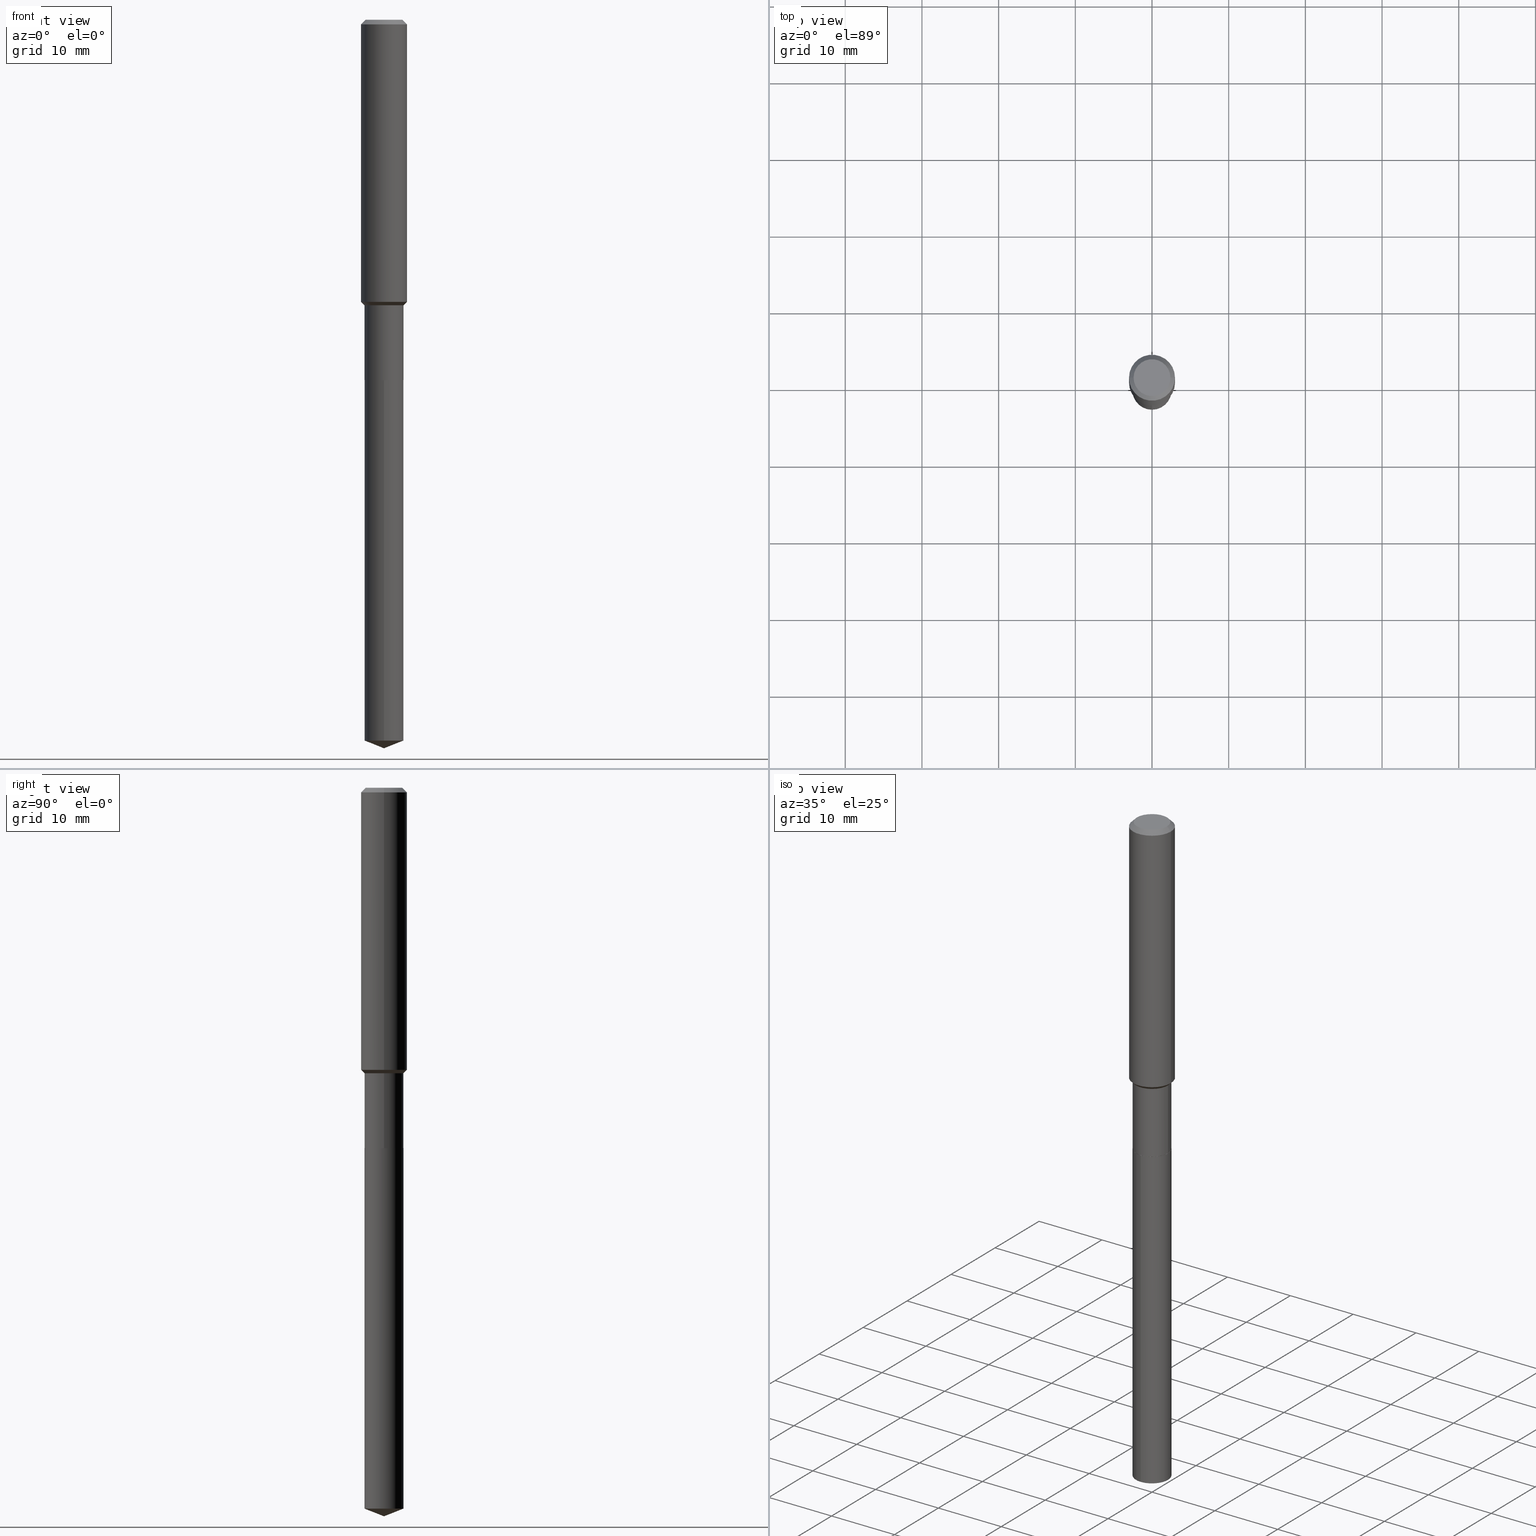
[diagram: canonical four-view strip — front | top / right | iso, engineering-drawing reading convention]
A machine part, canonical four-view strip (front | top / right | iso — engineering-drawing reading convention). The complete STEP part file that produces these views, byte-faithful:
ISO-10303-21;
HEADER;
FILE_DESCRIPTION (( 'STEP AP203' ),
    '1' );
FILE_NAME ('66627.STEP',
    '2024-04-25T02:21:04',
    ( '' ),
    ( '' ),
    'SwSTEP 2.0',
    'SolidWorks 2023',
    '' );
FILE_SCHEMA (( 'CONFIG_CONTROL_DESIGN' ));
ENDSEC;

DATA;
#1 = EDGE_CURVE ( 'NONE', #438, #490, #258, .T. ) ;
#2 = AXIS2_PLACEMENT_3D ( 'NONE', #126, #92, #237 ) ;
#3 = VECTOR ( 'NONE', #405, 39.37007874015748143 ) ;
#4 = VERTEX_POINT ( 'NONE', #230 ) ;
#5 = LOCAL_TIME ( 22, 21, 4.000000000000000000, #248 ) ;
#6 = VERTEX_POINT ( 'NONE', #54 ) ;
#7 = DIRECTION ( 'NONE',  ( -2.445468806185136597E-29, 3.491481338843145583E-15, 1.000000000000000000 ) ) ;
#8 = ORIENTED_EDGE ( 'NONE', *, *, #367, .T. ) ;
#9 = ADVANCED_FACE ( 'NONE', ( #119 ), #204, .T. ) ;
#10 = LINE ( 'NONE', #155, #250 ) ;
#11 = AXIS2_PLACEMENT_3D ( 'NONE', #478, #70, #135 ) ;
#12 = APPROVAL_PERSON_ORGANIZATION ( #401, #110, #138 ) ;
#13 = CARTESIAN_POINT ( 'NONE',  ( 0.1180999999999999966, -9.071566814582237199E-16, -0.02362000000000014088 ) ) ;
#14 = CC_DESIGN_PERSON_AND_ORGANIZATION_ASSIGNMENT ( #84, #459, ( #220 ) ) ;
#15 = DIRECTION ( 'NONE',  ( -2.445480539169629745E-29, 3.491464536541551464E-15, 1.000000000000000000 ) ) ;
#16 = DIRECTION ( 'NONE',  ( -2.445468806185136597E-29, 3.491481338843145583E-15, 1.000000000000000000 ) ) ;
#17 = CALENDAR_DATE ( 2024, 24, 4 ) ;
#18 = CYLINDRICAL_SURFACE ( 'NONE', #446, 0.1003999999999999754 ) ;
#19 = EDGE_CURVE ( 'NONE', #51, #262, #176, .T. ) ;
#20 = FACE_OUTER_BOUND ( 'NONE', #415, .T. ) ;
#21 = AXIS2_PLACEMENT_3D ( 'NONE', #353, #53, #91 ) ;
#22 = CONICAL_SURFACE ( 'NONE', #355, 0.09990000000000000269, 0.7853981633972606513 ) ;
#23 = DIRECTION ( 'NONE',  ( 1.000000000000000000, -6.982962677686270655E-15, 0.000000000000000000 ) ) ;
#24 = ORIENTED_EDGE ( 'NONE', *, *, #52, .F. ) ;
#25 = PERSON_AND_ORGANIZATION_ROLE ( 'design_supplier' ) ;
#26 = DIRECTION ( 'NONE',  ( -6.982962677686266711E-15, -1.000000000000000000, 2.720964137115799877E-15 ) ) ;
#27 = CARTESIAN_POINT ( 'NONE',  ( 5.776197320209327532E-31, -8.246878922347559293E-17, -0.02362000000000014088 ) ) ;
#28 = EDGE_CURVE ( 'NONE', #411, #6, #160, .T. ) ;
#29 = PRODUCT_DEFINITION_SHAPE ( 'NONE', 'NONE',  #238 ) ;
#30 = SHAPE_DEFINITION_REPRESENTATION ( #29, #224 ) ;
#31 = CARTESIAN_POINT ( 'NONE',  ( 3.541772471997932877E-29, -5.056712423046527608E-15, -1.448299999999999921 ) ) ;
#32 = DIRECTION ( 'NONE',  ( 6.611014441532047656E-15, 0.9304175679820245737, 0.3665012267242970800 ) ) ;
#33 = APPROVAL_DATE_TIME ( #134, #453 ) ;
#34 = VECTOR ( 'NONE', #123, 39.37007874015748143 ) ;
#35 = AXIS2_PLACEMENT_3D ( 'NONE', #418, #222, #380 ) ;
#36 = FACE_OUTER_BOUND ( 'NONE', #452, .T. ) ;
#37 = LINE ( 'NONE', #81, #169 ) ;
#38 = PERSON_AND_ORGANIZATION ( #256, #396 ) ;
#39 = PRODUCT_RELATED_PRODUCT_CATEGORY ( 'detail', '', ( #220 ) ) ;
#40 = CARTESIAN_POINT ( 'NONE',  ( 2.358133508849003952E-46, -3.366789680499277518E-32, -9.642868896486260050E-18 ) ) ;
#41 =( LENGTH_UNIT ( ) NAMED_UNIT ( * ) SI_UNIT ( $, .METRE. ) );
#42 = FACE_OUTER_BOUND ( 'NONE', #151, .T. ) ;
#43 = CIRCLE ( 'NONE', #364, 0.1180999999999999966 ) ;
#44 = CIRCLE ( 'NONE', #326, 0.1003999999999999893 ) ;
#45 = VERTEX_POINT ( 'NONE', #13 ) ;
#46 = ORIENTED_EDGE ( 'NONE', *, *, #384, .T. ) ;
#47 = EDGE_LOOP ( 'NONE', ( #113, #178, #343, #109 ) ) ;
#48 = APPLICATION_CONTEXT ( 'configuration controlled 3d designs of mechanical parts and assemblies' ) ;
#49 = CIRCLE ( 'NONE', #107, 0.1180999999999999966 ) ;
#50 = EDGE_LOOP ( 'NONE', ( #8, #373, #425, #149 ) ) ;
#51 = VERTEX_POINT ( 'NONE', #165 ) ;
#52 = EDGE_CURVE ( 'NONE', #51, #304, #461, .T. ) ;
#53 = DIRECTION ( 'NONE',  ( -2.445468806185136597E-29, 3.491481338843145583E-15, 1.000000000000000000 ) ) ;
#54 = CARTESIAN_POINT ( 'NONE',  ( -7.010894528396559145E-16, -0.1004000000000064563, -1.850400000000000045 ) ) ;
#55 = ORIENTED_EDGE ( 'NONE', *, *, #322, .F. ) ;
#56 = EDGE_CURVE ( 'NONE', #78, #215, #10, .T. ) ;
#57 = DIRECTION ( 'NONE',  ( 1.000000000000000000, -6.982962677686270655E-15, 0.000000000000000000 ) ) ;
#58 = PERSON_AND_ORGANIZATION_ROLE ( 'creator' ) ;
#59 = FACE_OUTER_BOUND ( 'NONE', #180, .T. ) ;
#60 = DIRECTION ( 'NONE',  ( 1.000000000000000000, -6.982962677686265133E-15, 0.000000000000000000 ) ) ;
#61 = CIRCLE ( 'NONE', #148, 0.1181000000000001632 ) ;
#62 = PERSON_AND_ORGANIZATION ( #256, #396 ) ;
#63 = DIRECTION ( 'NONE',  ( 1.000000000000000000, -6.982962677686263555E-15, 0.000000000000000000 ) ) ;
#64 = DIRECTION ( 'NONE',  ( -2.445480539169630025E-29, 3.491464536541551464E-15, 1.000000000000000000 ) ) ;
#65 = DIRECTION ( 'NONE',  ( -6.982962677686266711E-15, -1.000000000000000000, 5.441928274231599754E-15 ) ) ;
#66 = CALENDAR_DATE ( 2024, 24, 4 ) ;
#67 = DIRECTION ( 'NONE',  ( 1.000000000000000000, -6.982962677686265133E-15, 0.000000000000000000 ) ) ;
#68 = VERTEX_POINT ( 'NONE', #473 ) ;
#69 = AXIS2_PLACEMENT_3D ( 'NONE', #72, #164, #67 ) ;
#70 = DIRECTION ( 'NONE',  ( -2.445468806185136597E-29, 3.491481338843145583E-15, 1.000000000000000000 ) ) ;
#71 = EDGE_CURVE ( 'NONE', #4, #78, #218, .T. ) ;
#72 = CARTESIAN_POINT ( 'NONE',  ( 3.585057269867410650E-29, -5.118511642744051990E-15, -1.466000000000000192 ) ) ;
#73 = VERTEX_POINT ( 'NONE', #279 ) ;
#74 = AXIS2_PLACEMENT_3D ( 'NONE', #192, #345, #464 ) ;
#75 = ADVANCED_FACE ( 'NONE', ( #458 ), #351, .T. ) ;
#76 = APPROVAL_PERSON_ORGANIZATION ( #87, #453, #227 ) ;
#77 = ORIENTED_EDGE ( 'NONE', *, *, #1, .F. ) ;
#78 = VERTEX_POINT ( 'NONE', #465 ) ;
#79 = EDGE_CURVE ( 'NONE', #304, #447, #409, .T. ) ;
#80 = ORIENTED_EDGE ( 'NONE', *, *, #216, .F. ) ;
#81 = CARTESIAN_POINT ( 'NONE',  ( -0.09990000000000000269, -5.750804876371019148E-15, -1.850400000000000489 ) ) ;
#82 = ORIENTED_EDGE ( 'NONE', *, *, #28, .T. ) ;
#83 = CARTESIAN_POINT ( 'NONE',  ( 3.541772471997932877E-29, -5.056712423046527608E-15, -1.448299999999999921 ) ) ;
#84 = PERSON_AND_ORGANIZATION ( #256, #396 ) ;
#85 = CC_DESIGN_PERSON_AND_ORGANIZATION_ASSIGNMENT ( #38, #25, ( #108 ) ) ;
#86 = ORIENTED_EDGE ( 'NONE', *, *, #336, .F. ) ;
#87 = PERSON_AND_ORGANIZATION ( #256, #396 ) ;
#88 = ORIENTED_EDGE ( 'NONE', *, *, #144, .T. ) ;
#89 = AXIS2_PLACEMENT_3D ( 'NONE', #173, #298, #325 ) ;
#90 = SECURITY_CLASSIFICATION ( '', '', #167 ) ;
#91 = DIRECTION ( 'NONE',  ( 1.000000000000000000, -6.982962677686263555E-15, 0.000000000000000000 ) ) ;
#92 = DIRECTION ( 'NONE',  ( -2.438088387897960049E-29, 3.491481338843145188E-15, 1.000000000000000000 ) ) ;
#93 = ADVANCED_FACE ( 'NONE', ( #20 ), #240, .T. ) ;
#94 = DIRECTION ( 'NONE',  ( -2.445468806185136597E-29, 3.491481338843145583E-15, 1.000000000000000000 ) ) ;
#95 = LINE ( 'NONE', #332, #140 ) ;
#96 = AXIS2_PLACEMENT_3D ( 'NONE', #387, #328, #125 ) ;
#97 = APPROVAL_DATE_TIME ( #128, #110 ) ;
#98 = DIRECTION ( 'NONE',  ( -2.445468806185136597E-29, 3.491481338843145583E-15, 1.000000000000000000 ) ) ;
#99 = EDGE_LOOP ( 'NONE', ( #46, #479, #263, #179 ) ) ;
#100 = COORDINATED_UNIVERSAL_TIME_OFFSET ( 5, 0, .BEHIND. ) ;
#101 = CARTESIAN_POINT ( 'NONE',  ( 9.049849241497684976E-29, -1.292072417515092949E-14, -3.700651388248259455 ) ) ;
#102 = CARTESIAN_POINT ( 'NONE',  ( 4.525095478964977954E-29, -6.460637069395358365E-15, -1.850400000000000489 ) ) ;
#103 = CLOSED_SHELL ( 'NONE', ( #470, #170, #280, #9, #75, #243, #485, #264, #225, #340, #114, #359 ) ) ;
#104 = VECTOR ( 'NONE', #460, 39.37007874015748143 ) ;
#105 = ORIENTED_EDGE ( 'NONE', *, *, #127, .F. ) ;
#106 = CARTESIAN_POINT ( 'NONE',  ( 0.1181000000000000799, -8.246878922347486570E-16, 5.758764772215004644E-30 ) ) ;
#107 = AXIS2_PLACEMENT_3D ( 'NONE', #200, #98, #399 ) ;
#108 = PRODUCT_DEFINITION_FORMATION_WITH_SPECIFIED_SOURCE ( 'ANY', '', #220, .NOT_KNOWN. ) ;
#109 = ORIENTED_EDGE ( 'NONE', *, *, #19, .F. ) ;
#110 = APPROVAL ( #471, 'UNSPECIFIED' ) ;
#111 = ORIENTED_EDGE ( 'NONE', *, *, #71, .T. ) ;
#112 = DIRECTION ( 'NONE',  ( -2.445468806185136877E-29, 3.491481338843145188E-15, 1.000000000000000000 ) ) ;
#113 = ORIENTED_EDGE ( 'NONE', *, *, #260, .F. ) ;
#114 = ADVANCED_FACE ( 'NONE', ( #283 ), #430, .F. ) ;
#115 = CARTESIAN_POINT ( 'NONE',  ( 0.000000000000000000, 0.000000000000000000, 0.000000000000000000 ) ) ;
#116 = EDGE_LOOP ( 'NONE', ( #55, #210, #381, #105 ) ) ;
#117 = ORIENTED_EDGE ( 'NONE', *, *, #271, .F. ) ;
#118 = DIRECTION ( 'NONE',  ( 1.000000000000000000, -6.982962677686266711E-15, 4.876176775795935232E-29 ) ) ;
#119 = FACE_OUTER_BOUND ( 'NONE', #50, .T. ) ;
#120 = CARTESIAN_POINT ( 'NONE',  ( 4.525095478964977394E-29, -6.460637069395357576E-15, -1.850400000000000267 ) ) ;
#121 = CARTESIAN_POINT ( 'NONE',  ( 3.585057269867410650E-29, -5.118511642744051990E-15, -1.466000000000000192 ) ) ;
#122 = VECTOR ( 'NONE', #436, 39.37007874015748143 ) ;
#123 = DIRECTION ( 'NONE',  ( -0.7071067811865479058, 7.493145998870355738E-15, 0.7071067811865471286 ) ) ;
#124 = CALENDAR_DATE ( 2024, 24, 4 ) ;
#125 = DIRECTION ( 'NONE',  ( -6.982962677686265133E-15, -1.000000000000000000, 3.498627837350077192E-15 ) ) ;
#126 = CARTESIAN_POINT ( 'NONE',  ( 9.916663666885805899E-30, -1.152070866847078647E-14, -1.850400000000000489 ) ) ;
#127 = EDGE_CURVE ( 'NONE', #215, #45, #43, .T. ) ;
#128 = DATE_AND_TIME ( #124, #467 ) ;
#129 = CARTESIAN_POINT ( 'NONE',  ( 0.1181000000000001632, -5.881400315281276659E-15, -1.448299999999999921 ) ) ;
#130 = CARTESIAN_POINT ( 'NONE',  ( 7.133849067031857711E-16, 0.1003999999999935500, -1.850400000000000489 ) ) ;
#131 = VECTOR ( 'NONE', #469, 39.37007874015748143 ) ;
#132 = CONICAL_SURFACE ( 'NONE', #96, 99.94676754583788636, 1.195550537616112408 ) ;
#133 = LOCAL_TIME ( 22, 21, 4.000000000000000000, #462 ) ;
#134 = DATE_AND_TIME ( #17, #133 ) ;
#135 = DIRECTION ( 'NONE',  ( 1.000000000000000000, -6.982962677686267499E-15, 0.000000000000000000 ) ) ;
#136 = ORIENTED_EDGE ( 'NONE', *, *, #150, .T. ) ;
#137 = FACE_OUTER_BOUND ( 'NONE', #308, .T. ) ;
#138 = APPROVAL_ROLE ( '' ) ;
#139 = CYLINDRICAL_SURFACE ( 'NONE', #206, 0.1004000000000000031 ) ;
#140 = VECTOR ( 'NONE', #32, 39.37007874015748854 ) ;
#141 = AXIS2_PLACEMENT_3D ( 'NONE', #489, #255, #305 ) ;
#142 = ORIENTED_EDGE ( 'NONE', *, *, #395, .F. ) ;
#143 = ORIENTED_EDGE ( 'NONE', *, *, #56, .F. ) ;
#144 = EDGE_CURVE ( 'NONE', #73, #438, #294, .T. ) ;
#145 = CARTESIAN_POINT ( 'NONE',  ( 3.585057269867410650E-29, -5.118511642744051990E-15, -1.466000000000000192 ) ) ;
#146 = EDGE_LOOP ( 'NONE', ( #383, #86 ) ) ;
#147 = VECTOR ( 'NONE', #437, 39.37007874015748143 ) ;
#148 = AXIS2_PLACEMENT_3D ( 'NONE', #31, #94, #23 ) ;
#149 = ORIENTED_EDGE ( 'NONE', *, *, #252, .F. ) ;
#150 = EDGE_CURVE ( 'NONE', #153, #327, #95, .T. ) ;
#151 = EDGE_LOOP ( 'NONE', ( #24, #391, #257, #205 ) ) ;
#152 = LINE ( 'NONE', #311, #300 ) ;
#153 = VERTEX_POINT ( 'NONE', #297 ) ;
#154 = AXIS2_PLACEMENT_3D ( 'NONE', #171, #295, #26 ) ;
#155 = CARTESIAN_POINT ( 'NONE',  ( -0.1180999999999999966, 7.422191030112725094E-16, -0.02362000000000014088 ) ) ;
#156 = DIRECTION ( 'NONE',  ( 0.7071067811865479058, -2.468850131082261005E-15, 0.7071067811865471286 ) ) ;
#157 = DIRECTION ( 'NONE',  ( -0.7071067811865459074, 2.468850131082240100E-15, -0.7071067811865491270 ) ) ;
#158 = EDGE_CURVE ( 'NONE', #327, #422, #246, .T. ) ;
#159 = DIRECTION ( 'NONE',  ( -0.7071067811864147901, 7.493145998869874533E-15, 0.7071067811866802444 ) ) ;
#160 = LINE ( 'NONE', #349, #131 ) ;
#161 = CARTESIAN_POINT ( 'NONE',  ( 0.1003999999999999615, -5.819601095583753067E-15, -1.466000000000000192 ) ) ;
#162 = CARTESIAN_POINT ( 'NONE',  ( -8.713219678274335127E-28, 1.244004269715567405E-13, 35.62987874015747991 ) ) ;
#163 = AXIS2_PLACEMENT_3D ( 'NONE', #162, #356, #318 ) ;
#164 = DIRECTION ( 'NONE',  ( -2.445468806185136597E-29, 3.491481338843145583E-15, 1.000000000000000000 ) ) ;
#165 = CARTESIAN_POINT ( 'NONE',  ( -0.1003999999999999615, -5.075316579031853521E-15, -1.466000000000000192 ) ) ;
#166 = DIRECTION ( 'NONE',  ( -1.000000000000000000, 6.982962677686265922E-15, -4.876176775795935793E-29 ) ) ;
#167 = SECURITY_CLASSIFICATION_LEVEL ( 'unclassified' ) ;
#168 = CARTESIAN_POINT ( 'NONE',  ( 9.049849241497684976E-29, -1.292072417515092949E-14, -3.700651388248259455 ) ) ;
#169 = VECTOR ( 'NONE', #159, 39.37007874015748143 ) ;
#170 = ADVANCED_FACE ( 'NONE', ( #400 ), #182, .T. ) ;
#171 = CARTESIAN_POINT ( 'NONE',  ( 4.525095478964977394E-29, -6.460637069395357576E-15, -1.850400000000000267 ) ) ;
#172 = CALENDAR_DATE ( 2024, 24, 4 ) ;
#173 = CARTESIAN_POINT ( 'NONE',  ( 4.525095478964977954E-29, -6.460637069395358365E-15, -1.850400000000000489 ) ) ;
#174 = ORIENTED_EDGE ( 'NONE', *, *, #372, .F. ) ;
#175 = LENGTH_MEASURE_WITH_UNIT ( LENGTH_MEASURE( 0.02539999999999999897 ), #41 );
#176 = CIRCLE ( 'NONE', #289, 0.1003999999999999615 ) ;
#177 = CIRCLE ( 'NONE', #89, 0.09990000000000000269 ) ;
#178 = ORIENTED_EDGE ( 'NONE', *, *, #395, .T. ) ;
#179 = ORIENTED_EDGE ( 'NONE', *, *, #488, .F. ) ;
#180 = EDGE_LOOP ( 'NONE', ( #406, #269 ) ) ;
#181 = EDGE_CURVE ( 'NONE', #68, #490, #37, .T. ) ;
#182 = CONICAL_SURFACE ( 'NONE', #410, 0.1180999999999999966, 0.7853981633974460586 ) ;
#183 = LOCAL_TIME ( 22, 21, 4.000000000000000000, #100 ) ;
#184 = ORIENTED_EDGE ( 'NONE', *, *, #216, .T. ) ;
#185 = ORIENTED_EDGE ( 'NONE', *, *, #260, .T. ) ;
#186 = DIRECTION ( 'NONE',  ( 0.7071067811865459074, -7.319954787623249734E-15, -0.7071067811865491270 ) ) ;
#187 = DIRECTION ( 'NONE',  ( 1.000000000000000000, -6.982962677686265133E-15, 0.000000000000000000 ) ) ;
#188 = AXIS2_PLACEMENT_3D ( 'NONE', #83, #388, #57 ) ;
#189 = CARTESIAN_POINT ( 'NONE',  ( 0.1003999999999999615, -5.819601095583753067E-15, -1.466000000000000192 ) ) ;
#190 = AXIS2_PLACEMENT_3D ( 'NONE', #457, #427, #454 ) ;
#191 = DIRECTION ( 'NONE',  ( -2.445468806185136597E-29, 3.491481338843145583E-15, 1.000000000000000000 ) ) ;
#192 = CARTESIAN_POINT ( 'NONE',  ( 4.525095478964977394E-29, -6.460637069395357576E-15, -1.850400000000000267 ) ) ;
#193 = DIRECTION ( 'NONE',  ( 1.000000000000000000, -6.982962677686267499E-15, 4.875432709231658792E-29 ) ) ;
#194 = CC_DESIGN_DATE_AND_TIME_ASSIGNMENT ( #324, #319, ( #90 ) ) ;
#195 = ORIENTED_EDGE ( 'NONE', *, *, #28, .F. ) ;
#196 = PERSON_AND_ORGANIZATION_ROLE ( 'classification_officer' ) ;
#197 = CARTESIAN_POINT ( 'NONE',  ( 9.146542891173238393E-29, -1.305883784153045268E-14, -3.740200000000000191 ) ) ;
#198 = CARTESIAN_POINT ( 'NONE',  ( 5.776197320209327532E-31, -8.246878922347559293E-17, -0.02362000000000014088 ) ) ;
#199 = CONICAL_SURFACE ( 'NONE', #266, 0.1003999999999999615, 0.7853981633974488341 ) ;
#200 = CARTESIAN_POINT ( 'NONE',  ( 5.776197320209327532E-31, -8.246878922347559293E-17, -0.02362000000000014088 ) ) ;
#201 = DIRECTION ( 'NONE',  ( 1.000000000000000000, -6.982962677686267499E-15, 4.875432709231658792E-29 ) ) ;
#202 = APPROVAL_STATUS ( 'not_yet_approved' ) ;
#203 = CARTESIAN_POINT ( 'NONE',  ( -7.010894528396106536E-16, -0.1004000000000129511, -3.700651388248259011 ) ) ;
#204 = CONICAL_SURFACE ( 'NONE', #393, 0.1003999999999999615, 0.7853981633974488341 ) ;
#205 = ORIENTED_EDGE ( 'NONE', *, *, #79, .F. ) ;
#206 = AXIS2_PLACEMENT_3D ( 'NONE', #480, #363, #242 ) ;
#207 = PERSON_AND_ORGANIZATION ( #256, #396 ) ;
#208 = PLANE ( 'NONE',  #466 ) ;
#209 = EDGE_CURVE ( 'NONE', #422, #6, #241, .T. ) ;
#210 = ORIENTED_EDGE ( 'NONE', *, *, #79, .T. ) ;
#211 = CONICAL_SURFACE ( 'NONE', #190, 0.1180999999999999966, 0.7853981633974460586 ) ;
#212 = CC_DESIGN_APPROVAL ( #110, ( #90 ) ) ;
#213 = ORIENTED_EDGE ( 'NONE', *, *, #315, .T. ) ;
#214 = UNCERTAINTY_MEASURE_WITH_UNIT (LENGTH_MEASURE( 1.000000000000000082E-05 ), #407, 'distance_accuracy_value', 'NONE');
#215 = VERTEX_POINT ( 'NONE', #390 ) ;
#216 = EDGE_CURVE ( 'NONE', #153, #411, #272, .T. ) ;
#217 = ORIENTED_EDGE ( 'NONE', *, *, #336, .T. ) ;
#218 = CIRCLE ( 'NONE', #376, 0.09447999999999998066 ) ;
#219 = AXIS2_PLACEMENT_3D ( 'NONE', #101, #431, #65 ) ;
#220 = PRODUCT ( '66627', '66627', '', ( #270 ) ) ;
#221 = EDGE_LOOP ( 'NONE', ( #346, #185, #370, #338 ) ) ;
#222 = DIRECTION ( 'NONE',  ( -2.445468806185136597E-29, 3.491481338843145583E-15, 1.000000000000000000 ) ) ;
#223 = DIRECTION ( 'NONE',  ( -2.445468806185136597E-29, 3.491481338843145583E-15, 1.000000000000000000 ) ) ;
#224 = ADVANCED_BREP_SHAPE_REPRESENTATION ( '66627', ( #444, #281, #404 ), #309 ) ;
#225 = ADVANCED_FACE ( 'NONE', ( #314 ), #211, .T. ) ;
#226 = ORIENTED_EDGE ( 'NONE', *, *, #209, .F. ) ;
#227 = APPROVAL_ROLE ( '' ) ;
#228 = CARTESIAN_POINT ( 'NONE',  ( 0.1180999999999999966, -8.926936027602933910E-16, -0.02362000000000014088 ) ) ;
#229 = VECTOR ( 'NONE', #156, 39.37007874015748143 ) ;
#230 = CARTESIAN_POINT ( 'NONE',  ( 0.09447999999999998066, -7.704367267948738690E-16, -1.928573779296752193E-17 ) ) ;
#231 = CC_DESIGN_DATE_AND_TIME_ASSIGNMENT ( #397, #435, ( #238 ) ) ;
#232 = APPROVAL_STATUS ( 'not_yet_approved' ) ;
#233 = DIRECTION ( 'NONE',  ( -2.445468806185136877E-29, 3.491481338843145188E-15, 1.000000000000000000 ) ) ;
#234 = DIRECTION ( 'NONE',  ( 1.000000000000000000, -6.982962677686266711E-15, 4.876176775795935232E-29 ) ) ;
#235 = ADVANCED_FACE ( 'NONE', ( #59 ), #420, .F. ) ;
#236 = APPROVAL_DATE_TIME ( #366, #296 ) ;
#237 = DIRECTION ( 'NONE',  ( 1.000000000000000000, -6.982962677686265922E-15, 4.876176775795935793E-29 ) ) ;
#238 = PRODUCT_DEFINITION ( 'UNKNOWN', '', #108, #342 ) ;
#239 = DIRECTION ( 'NONE',  ( -2.445468806185136597E-29, 3.491481338843145583E-15, 1.000000000000000000 ) ) ;
#240 = CONICAL_SURFACE ( 'NONE', #163, 99.94676754583788636, 1.195550537616112408 ) ;
#241 = CIRCLE ( 'NONE', #426, 0.1004000000000000031 ) ;
#242 = DIRECTION ( 'NONE',  ( -6.982962677686266711E-15, -1.000000000000000000, 2.720964137115799877E-15 ) ) ;
#243 = ADVANCED_FACE ( 'NONE', ( #352 ), #18, .T. ) ;
#244 = PERSON_AND_ORGANIZATION ( #256, #396 ) ;
#245 = DIRECTION ( 'NONE',  ( -2.445468806185136597E-29, 3.491481338843145583E-15, 1.000000000000000000 ) ) ;
#246 = LINE ( 'NONE', #130, #416 ) ;
#247 = ORIENTED_EDGE ( 'NONE', *, *, #181, .F. ) ;
#248 = COORDINATED_UNIVERSAL_TIME_OFFSET ( 5, 0, .BEHIND. ) ;
#249 = DIRECTION ( 'NONE',  ( -2.445468806185136597E-29, 3.491481338843145583E-15, 1.000000000000000000 ) ) ;
#250 = VECTOR ( 'NONE', #157, 39.37007874015748143 ) ;
#251 = AXIS2_PLACEMENT_3D ( 'NONE', #288, #433, #201 ) ;
#252 = EDGE_CURVE ( 'NONE', #262, #447, #468, .T. ) ;
#253 = CARTESIAN_POINT ( 'NONE',  ( 4.525095478964977954E-29, -6.460637069395358365E-15, -1.850400000000000489 ) ) ;
#254 = CARTESIAN_POINT ( 'NONE',  ( 0.09990000000000000269, -7.158235040896217223E-15, -1.850400000000000489 ) ) ;
#255 = DIRECTION ( 'NONE',  ( -2.445480539169629745E-29, 3.491464536541551464E-15, 1.000000000000000000 ) ) ;
#256 = PERSON ( 'UNSPECIFIED', 'UNSPECIFIED', 'UNSPECIFIED', ('UNSPECIFIED'), ('UNSPECIFIED'), ('UNSPECIFIED') ) ;
#257 = ORIENTED_EDGE ( 'NONE', *, *, #252, .T. ) ;
#258 = CIRCLE ( 'NONE', #21, 0.1003999999999999893 ) ;
#259 = CC_DESIGN_SECURITY_CLASSIFICATION ( #90, ( #108 ) ) ;
#260 = EDGE_CURVE ( 'NONE', #490, #51, #152, .T. ) ;
#261 = EDGE_LOOP ( 'NONE', ( #247, #217, #88, #142 ) ) ;
#262 = VERTEX_POINT ( 'NONE', #161 ) ;
#263 = ORIENTED_EDGE ( 'NONE', *, *, #408, .F. ) ;
#264 = ADVANCED_FACE ( 'NONE', ( #307 ), #282, .T. ) ;
#265 = DIRECTION ( 'NONE',  ( 0.000000000000000000, 0.000000000000000000, 1.000000000000000000 ) ) ;
#266 = AXIS2_PLACEMENT_3D ( 'NONE', #145, #451, #448 ) ;
#267 = DIRECTION ( 'NONE',  ( 1.000000000000000000, -6.982962677686266711E-15, 4.876176775795936353E-29 ) ) ;
#268 = CC_DESIGN_APPROVAL ( #453, ( #238 ) ) ;
#269 = ORIENTED_EDGE ( 'NONE', *, *, #209, .T. ) ;
#270 = MECHANICAL_CONTEXT ( 'NONE', #361, 'mechanical' ) ;
#271 = EDGE_CURVE ( 'NONE', #4, #45, #424, .T. ) ;
#272 = LINE ( 'NONE', #197, #104 ) ;
#273 = EDGE_LOOP ( 'NONE', ( #360, #414, #450, #143 ) ) ;
#274 = DIRECTION ( 'NONE',  ( 1.000000000000000000, 0.000000000000000000, 0.000000000000000000 ) ) ;
#275 = DIRECTION ( 'NONE',  ( -2.445468806185136597E-29, 3.491481338843145583E-15, 1.000000000000000000 ) ) ;
#276 = CARTESIAN_POINT ( 'NONE',  ( 4.716267017698007905E-46, -6.733579360998555036E-32, -1.928573779297252010E-17 ) ) ;
#277 = FACE_OUTER_BOUND ( 'NONE', #413, .T. ) ;
#278 = CIRCLE ( 'NONE', #11, 0.09990000000000000269 ) ;
#279 = CARTESIAN_POINT ( 'NONE',  ( 0.09990000000000000269, -7.158235040896217223E-15, -1.850400000000000489 ) ) ;
#280 = ADVANCED_FACE ( 'NONE', ( #385 ), #350, .T. ) ;
#281 = MANIFOLD_SOLID_BREP ( 'Body-Move/Copy2[2]', #103 ) ;
#282 = CYLINDRICAL_SURFACE ( 'NONE', #303, 0.1181000000000000799 ) ;
#283 = FACE_OUTER_BOUND ( 'NONE', #146, .T. ) ;
#284 = CALENDAR_DATE ( 2024, 24, 4 ) ;
#285 = LINE ( 'NONE', #402, #3 ) ;
#286 = DIRECTION ( 'NONE',  ( 1.000000000000000000, -6.982962677686266711E-15, 0.000000000000000000 ) ) ;
#287 = ADVANCED_FACE ( 'NONE', ( #277 ), #132, .T. ) ;
#288 = CARTESIAN_POINT ( 'NONE',  ( 4.716267017698007905E-46, -6.733579360998555036E-32, -1.928573779297252010E-17 ) ) ;
#289 = AXIS2_PLACEMENT_3D ( 'NONE', #386, #191, #60 ) ;
#290 = DIRECTION ( 'NONE',  ( -1.000000000000000000, 6.982962677686266711E-15, 0.000000000000000000 ) ) ;
#291 = CONICAL_SURFACE ( 'NONE', #347, 0.09990000000000000269, 0.7853981633972606513 ) ;
#292 = AXIS2_PLACEMENT_3D ( 'NONE', #168, #398, #440 ) ;
#293 = FACE_OUTER_BOUND ( 'NONE', #261, .T. ) ;
#294 = LINE ( 'NONE', #254, #147 ) ;
#295 = DIRECTION ( 'NONE',  ( -2.445480539169629745E-29, 3.491464536541551464E-15, 1.000000000000000000 ) ) ;
#296 = APPROVAL ( #202, 'UNSPECIFIED' ) ;
#297 = CARTESIAN_POINT ( 'NONE',  ( 9.146586312602250272E-29, -1.305877565957271148E-14, -3.740200000000000191 ) ) ;
#298 = DIRECTION ( 'NONE',  ( -2.445468806185136597E-29, 3.491481338843145583E-15, 1.000000000000000000 ) ) ;
#299 = ORIENTED_EDGE ( 'NONE', *, *, #150, .F. ) ;
#300 = VECTOR ( 'NONE', #233, 39.37007874015748143 ) ;
#301 = ORIENTED_EDGE ( 'NONE', *, *, #449, .F. ) ;
#302 = ORIENTED_EDGE ( 'NONE', *, *, #477, .F. ) ;
#303 = AXIS2_PLACEMENT_3D ( 'NONE', #115, #275, #267 ) ;
#304 = VERTEX_POINT ( 'NONE', #354 ) ;
#305 = DIRECTION ( 'NONE',  ( -6.982962677686266711E-15, -1.000000000000000000, 2.720964137115799877E-15 ) ) ;
#306 = EDGE_LOOP ( 'NONE', ( #487, #371, #82, #226 ) ) ;
#307 = FACE_OUTER_BOUND ( 'NONE', #116, .T. ) ;
#308 = EDGE_LOOP ( 'NONE', ( #419, #111 ) ) ;
#309 =( GEOMETRIC_REPRESENTATION_CONTEXT ( 3 ) GLOBAL_UNCERTAINTY_ASSIGNED_CONTEXT ( ( #214 ) ) GLOBAL_UNIT_ASSIGNED_CONTEXT ( ( #407, #333, #379 ) ) REPRESENTATION_CONTEXT ( 'NONE', 'WORKASPACE' ) );
#310 = ORIENTED_EDGE ( 'NONE', *, *, #372, .T. ) ;
#311 = CARTESIAN_POINT ( 'NONE',  ( -0.1003999999999999754, 7.133849067031404116E-16, -4.938610830615923592E-30 ) ) ;
#312 = DIRECTION ( 'NONE',  ( -2.445468806185136597E-29, 3.491481338843145583E-15, 1.000000000000000000 ) ) ;
#313 = APPLICATION_PROTOCOL_DEFINITION ( 'international standard', 'config_control_design', 1994, #361 ) ;
#314 = FACE_OUTER_BOUND ( 'NONE', #316, .T. ) ;
#315 = EDGE_CURVE ( 'NONE', #73, #68, #177, .T. ) ;
#316 = EDGE_LOOP ( 'NONE', ( #117, #301, #339, #455 ) ) ;
#317 = CARTESIAN_POINT ( 'NONE',  ( 0.000000000000000000, 0.000000000000000000, 0.000000000000000000 ) ) ;
#318 = DIRECTION ( 'NONE',  ( -6.982962677686265133E-15, -1.000000000000000000, 3.498627837350077192E-15 ) ) ;
#319 = DATE_TIME_ROLE ( 'classification_date' ) ;
#320 = CARTESIAN_POINT ( 'NONE',  ( 4.523872744561885153E-29, -6.458891328725936072E-15, -1.849900000000000322 ) ) ;
#321 = CARTESIAN_POINT ( 'NONE',  ( -0.1003999999999999615, -4.405126736040911085E-15, -1.466000000000000192 ) ) ;
#322 = EDGE_CURVE ( 'NONE', #304, #215, #285, .T. ) ;
#323 = CARTESIAN_POINT ( 'NONE',  ( 0.1003999999999999893, -7.159980781565636360E-15, -1.849900000000000322 ) ) ;
#324 = DATE_AND_TIME ( #172, #484 ) ;
#325 = DIRECTION ( 'NONE',  ( 1.000000000000000000, -6.982962677686267499E-15, 0.000000000000000000 ) ) ;
#326 = AXIS2_PLACEMENT_3D ( 'NONE', #320, #245, #63 ) ;
#327 = VERTEX_POINT ( 'NONE', #368 ) ;
#328 = DIRECTION ( 'NONE',  ( -2.445480539169629745E-29, 3.491464536541551464E-15, 1.000000000000000000 ) ) ;
#329 = COORDINATED_UNIVERSAL_TIME_OFFSET ( 5, 0, .BEHIND. ) ;
#330 = CARTESIAN_POINT ( 'NONE',  ( 0.1003999999999999754, -7.010894528397009782E-16, 4.895681482899117754E-30 ) ) ;
#331 = EDGE_CURVE ( 'NONE', #327, #411, #434, .T. ) ;
#332 = CARTESIAN_POINT ( 'NONE',  ( 9.146586693356927948E-29, -1.305877565957271148E-14, -3.740200000000000191 ) ) ;
#333 =( NAMED_UNIT ( * ) PLANE_ANGLE_UNIT ( ) SI_UNIT ( $, .RADIAN. ) );
#334 = CIRCLE ( 'NONE', #219, 0.1004000000000000031 ) ;
#335 = ORIENTED_EDGE ( 'NONE', *, *, #144, .F. ) ;
#336 = EDGE_CURVE ( 'NONE', #68, #73, #278, .T. ) ;
#337 = DIRECTION ( 'NONE',  ( 1.000000000000000000, -6.982962677686267499E-15, 0.000000000000000000 ) ) ;
#338 = ORIENTED_EDGE ( 'NONE', *, *, #369, .F. ) ;
#339 = ORIENTED_EDGE ( 'NONE', *, *, #56, .T. ) ;
#340 = ADVANCED_FACE ( 'NONE', ( #137 ), #208, .F. ) ;
#341 = ORIENTED_EDGE ( 'NONE', *, *, #331, .F. ) ;
#342 = DESIGN_CONTEXT ( 'detailed design', #48, 'design' ) ;
#343 = ORIENTED_EDGE ( 'NONE', *, *, #369, .T. ) ;
#344 = DIMENSIONAL_EXPONENTS ( 1.000000000000000000, 0.000000000000000000, 0.000000000000000000, 0.000000000000000000, 0.000000000000000000, 0.000000000000000000, 0.000000000000000000 ) ;
#345 = DIRECTION ( 'NONE',  ( 2.445480539169629464E-29, -3.491464536541551464E-15, -1.000000000000000000 ) ) ;
#346 = ORIENTED_EDGE ( 'NONE', *, *, #1, .T. ) ;
#347 = AXIS2_PLACEMENT_3D ( 'NONE', #253, #239, #394 ) ;
#348 = CC_DESIGN_APPROVAL ( #296, ( #108 ) ) ;
#349 = CARTESIAN_POINT ( 'NONE',  ( -7.010894528396559145E-16, -0.1004000000000064563, -1.850400000000000045 ) ) ;
#350 = CYLINDRICAL_SURFACE ( 'NONE', #35, 0.1181000000000000799 ) ;
#351 = CYLINDRICAL_SURFACE ( 'NONE', #456, 0.1003999999999999754 ) ;
#352 = FACE_OUTER_BOUND ( 'NONE', #47, .T. ) ;
#353 = CARTESIAN_POINT ( 'NONE',  ( 4.523872744561885153E-29, -6.458891328725936072E-15, -1.849900000000000322 ) ) ;
#354 = CARTESIAN_POINT ( 'NONE',  ( -0.1181000000000001632, -4.217561452113847833E-15, -1.448299999999999921 ) ) ;
#355 = AXIS2_PLACEMENT_3D ( 'NONE', #102, #249, #337 ) ;
#356 = DIRECTION ( 'NONE',  ( -2.445480539169629745E-29, 3.491464536541551464E-15, 1.000000000000000000 ) ) ;
#357 = PERSON_AND_ORGANIZATION ( #256, #396 ) ;
#358 = CYLINDRICAL_SURFACE ( 'NONE', #154, 0.1004000000000000031 ) ;
#359 = ADVANCED_FACE ( 'NONE', ( #293 ), #291, .T. ) ;
#360 = ORIENTED_EDGE ( 'NONE', *, *, #71, .F. ) ;
#361 = APPLICATION_CONTEXT ( 'configuration controlled 3d designs of mechanical parts and assemblies' ) ;
#362 = DIRECTION ( 'NONE',  ( 2.438088387897960049E-29, -3.491481338843145188E-15, -1.000000000000000000 ) ) ;
#363 = DIRECTION ( 'NONE',  ( -2.445480539169629745E-29, 3.491464536541551464E-15, 1.000000000000000000 ) ) ;
#364 = AXIS2_PLACEMENT_3D ( 'NONE', #198, #482, #286 ) ;
#365 = CIRCLE ( 'NONE', #69, 0.1003999999999999615 ) ;
#366 = DATE_AND_TIME ( #284, #183 ) ;
#367 = EDGE_CURVE ( 'NONE', #262, #51, #365, .T. ) ;
#368 = CARTESIAN_POINT ( 'NONE',  ( 7.133849067032312293E-16, 0.1003999999999871107, -3.700651388248259899 ) ) ;
#369 = EDGE_CURVE ( 'NONE', #438, #262, #472, .T. ) ;
#370 = ORIENTED_EDGE ( 'NONE', *, *, #367, .F. ) ;
#371 = ORIENTED_EDGE ( 'NONE', *, *, #331, .T. ) ;
#372 = EDGE_CURVE ( 'NONE', #411, #327, #334, .T. ) ;
#373 = ORIENTED_EDGE ( 'NONE', *, *, #52, .T. ) ;
#374 = CC_DESIGN_PERSON_AND_ORGANIZATION_ASSIGNMENT ( #357, #196, ( #90 ) ) ;
#375 = ORIENTED_EDGE ( 'NONE', *, *, #181, .T. ) ;
#376 = AXIS2_PLACEMENT_3D ( 'NONE', #276, #223, #193 ) ;
#377 = VECTOR ( 'NONE', #186, 39.37007874015748143 ) ;
#378 = ORIENTED_EDGE ( 'NONE', *, *, #158, .T. ) ;
#379 =( NAMED_UNIT ( * ) SI_UNIT ( $, .STERADIAN. ) SOLID_ANGLE_UNIT ( ) );
#380 = DIRECTION ( 'NONE',  ( 1.000000000000000000, -6.982962677686266711E-15, 4.876176775795936353E-29 ) ) ;
#381 = ORIENTED_EDGE ( 'NONE', *, *, #488, .T. ) ;
#382 = DIRECTION ( 'NONE',  ( -6.982962677686266711E-15, -1.000000000000000000, 2.720964137115799877E-15 ) ) ;
#383 = ORIENTED_EDGE ( 'NONE', *, *, #315, .F. ) ;
#384 = EDGE_CURVE ( 'NONE', #447, #304, #61, .T. ) ;
#385 = FACE_OUTER_BOUND ( 'NONE', #99, .T. ) ;
#386 = CARTESIAN_POINT ( 'NONE',  ( 3.585057269867410650E-29, -5.118511642744051990E-15, -1.466000000000000192 ) ) ;
#387 = CARTESIAN_POINT ( 'NONE',  ( -8.713219678274335127E-28, 1.244004269715567405E-13, 35.62987874015747991 ) ) ;
#388 = DIRECTION ( 'NONE',  ( -2.445468806185136597E-29, 3.491481338843145583E-15, 1.000000000000000000 ) ) ;
#389 = APPROVAL_ROLE ( '' ) ;
#390 = CARTESIAN_POINT ( 'NONE',  ( -0.1180999999999999966, -1.730439635202322152E-15, -0.02362000000000014088 ) ) ;
#391 = ORIENTED_EDGE ( 'NONE', *, *, #19, .T. ) ;
#392 = COORDINATED_UNIVERSAL_TIME_OFFSET ( 5, 0, .BEHIND. ) ;
#393 = AXIS2_PLACEMENT_3D ( 'NONE', #121, #312, #187 ) ;
#394 = DIRECTION ( 'NONE',  ( 1.000000000000000000, -6.982962677686267499E-15, 0.000000000000000000 ) ) ;
#395 = EDGE_CURVE ( 'NONE', #490, #438, #44, .T. ) ;
#396 = ORGANIZATION ( 'UNSPECIFIED', 'UNSPECIFIED', '' ) ;
#397 = DATE_AND_TIME ( #66, #5 ) ;
#398 = DIRECTION ( 'NONE',  ( -2.445480539169629745E-29, 3.491464536541551464E-15, 1.000000000000000000 ) ) ;
#399 = DIRECTION ( 'NONE',  ( 1.000000000000000000, -6.982962677686266711E-15, 0.000000000000000000 ) ) ;
#400 = FACE_OUTER_BOUND ( 'NONE', #273, .T. ) ;
#401 = PERSON_AND_ORGANIZATION ( #256, #396 ) ;
#402 = CARTESIAN_POINT ( 'NONE',  ( -0.1181000000000000799, 8.391509709326788873E-16, -5.809262341591047988E-30 ) ) ;
#403 = CIRCLE ( 'NONE', #251, 0.09447999999999998066 ) ;
#404 = AXIS2_PLACEMENT_3D ( 'NONE', #417, #265, #274 ) ;
#405 = DIRECTION ( 'NONE',  ( -2.445468806185136877E-29, 3.491481338843145188E-15, 1.000000000000000000 ) ) ;
#406 = ORIENTED_EDGE ( 'NONE', *, *, #477, .T. ) ;
#407 =( CONVERSION_BASED_UNIT ( 'INCH', #175 ) LENGTH_UNIT ( ) NAMED_UNIT ( #344 ) );
#408 = EDGE_CURVE ( 'NONE', #45, #215, #49, .T. ) ;
#409 = CIRCLE ( 'NONE', #188, 0.1181000000000001632 ) ;
#410 = AXIS2_PLACEMENT_3D ( 'NONE', #27, #476, #290 ) ;
#411 = VERTEX_POINT ( 'NONE', #203 ) ;
#412 = CC_DESIGN_PERSON_AND_ORGANIZATION_ASSIGNMENT ( #207, #474, ( #238 ) ) ;
#413 = EDGE_LOOP ( 'NONE', ( #299, #184, #341 ) ) ;
#414 = ORIENTED_EDGE ( 'NONE', *, *, #271, .T. ) ;
#415 = EDGE_LOOP ( 'NONE', ( #80, #136, #174 ) ) ;
#416 = VECTOR ( 'NONE', #64, 39.37007874015748143 ) ;
#417 = CARTESIAN_POINT ( 'NONE',  ( 0.000000000000000000, 0.000000000000000000, 0.000000000000000000 ) ) ;
#418 = CARTESIAN_POINT ( 'NONE',  ( 0.000000000000000000, 0.000000000000000000, 0.000000000000000000 ) ) ;
#419 = ORIENTED_EDGE ( 'NONE', *, *, #449, .T. ) ;
#420 = PLANE ( 'NONE',  #74 ) ;
#421 = ADVANCED_FACE ( 'NONE', ( #481 ), #139, .T. ) ;
#422 = VERTEX_POINT ( 'NONE', #475 ) ;
#423 = APPLICATION_PROTOCOL_DEFINITION ( 'international standard', 'config_control_design', 1994, #48 ) ;
#424 = LINE ( 'NONE', #228, #377 ) ;
#425 = ORIENTED_EDGE ( 'NONE', *, *, #384, .F. ) ;
#426 = AXIS2_PLACEMENT_3D ( 'NONE', #120, #15, #382 ) ;
#427 = DIRECTION ( 'NONE',  ( 2.445468806185136597E-29, -3.491481338843145583E-15, -1.000000000000000000 ) ) ;
#428 = CARTESIAN_POINT ( 'NONE',  ( 0.000000000000000000, 0.000000000000000000, 0.000000000000000000 ) ) ;
#429 = ADVANCED_FACE ( 'NONE', ( #36 ), #358, .T. ) ;
#430 = PLANE ( 'NONE',  #2 ) ;
#431 = DIRECTION ( 'NONE',  ( -2.445480539169629745E-29, 3.491464536541551464E-15, 1.000000000000000000 ) ) ;
#432 = CLOSED_SHELL ( 'NONE', ( #429, #93, #287, #421, #235 ) ) ;
#433 = DIRECTION ( 'NONE',  ( -2.445468806185136597E-29, 3.491481338843145583E-15, 1.000000000000000000 ) ) ;
#434 = CIRCLE ( 'NONE', #292, 0.1004000000000000031 ) ;
#435 = DATE_TIME_ROLE ( 'creation_date' ) ;
#436 = DIRECTION ( 'NONE',  ( -2.445468806185136877E-29, 3.491481338843145188E-15, 1.000000000000000000 ) ) ;
#437 = DIRECTION ( 'NONE',  ( 0.7071067811864147901, -2.468850131080866299E-15, 0.7071067811866802444 ) ) ;
#438 = VERTEX_POINT ( 'NONE', #323 ) ;
#439 = FACE_OUTER_BOUND ( 'NONE', #443, .T. ) ;
#440 = DIRECTION ( 'NONE',  ( -6.982962677686266711E-15, -1.000000000000000000, 5.441928274231599754E-15 ) ) ;
#441 = CIRCLE ( 'NONE', #141, 0.1004000000000000031 ) ;
#442 = APPROVAL_PERSON_ORGANIZATION ( #244, #296, #389 ) ;
#443 = EDGE_LOOP ( 'NONE', ( #213, #375, #77, #335 ) ) ;
#444 = MANIFOLD_SOLID_BREP ( 'Body-Move/Copy2[1]', #432 ) ;
#445 = LINE ( 'NONE', #106, #483 ) ;
#446 = AXIS2_PLACEMENT_3D ( 'NONE', #317, #7, #118 ) ;
#447 = VERTEX_POINT ( 'NONE', #129 ) ;
#448 = DIRECTION ( 'NONE',  ( 1.000000000000000000, -6.982962677686265133E-15, 0.000000000000000000 ) ) ;
#449 = EDGE_CURVE ( 'NONE', #78, #4, #403, .T. ) ;
#450 = ORIENTED_EDGE ( 'NONE', *, *, #408, .T. ) ;
#451 = DIRECTION ( 'NONE',  ( -2.445468806185136597E-29, 3.491481338843145583E-15, 1.000000000000000000 ) ) ;
#452 = EDGE_LOOP ( 'NONE', ( #310, #378, #302, #195 ) ) ;
#453 = APPROVAL ( #232, 'UNSPECIFIED' ) ;
#454 = DIRECTION ( 'NONE',  ( -1.000000000000000000, 6.982962677686266711E-15, 0.000000000000000000 ) ) ;
#455 = ORIENTED_EDGE ( 'NONE', *, *, #127, .T. ) ;
#456 = AXIS2_PLACEMENT_3D ( 'NONE', #428, #16, #234 ) ;
#457 = CARTESIAN_POINT ( 'NONE',  ( 5.776197320209327532E-31, -8.246878922347559293E-17, -0.02362000000000014088 ) ) ;
#458 = FACE_OUTER_BOUND ( 'NONE', #221, .T. ) ;
#459 = PERSON_AND_ORGANIZATION_ROLE ( 'design_owner' ) ;
#460 = DIRECTION ( 'NONE',  ( -6.497071151882101692E-15, -0.9304175679820220202, 0.3665012267243036859 ) ) ;
#461 = LINE ( 'NONE', #321, #34 ) ;
#462 = COORDINATED_UNIVERSAL_TIME_OFFSET ( 5, 0, .BEHIND. ) ;
#463 = CC_DESIGN_PERSON_AND_ORGANIZATION_ASSIGNMENT ( #62, #58, ( #108 ) ) ;
#464 = DIRECTION ( 'NONE',  ( 6.982962677686265922E-15, 1.000000000000000000, -3.491464536541551464E-15 ) ) ;
#465 = CARTESIAN_POINT ( 'NONE',  ( -0.09447999999999998066, 7.009847083995354710E-16, -1.928573779297727792E-17 ) ) ;
#466 = AXIS2_PLACEMENT_3D ( 'NONE', #40, #362, #166 ) ;
#467 = LOCAL_TIME ( 22, 21, 4.000000000000000000, #329 ) ;
#468 = LINE ( 'NONE', #189, #229 ) ;
#469 = DIRECTION ( 'NONE',  ( -2.445480539169630025E-29, 3.491464536541551464E-15, 1.000000000000000000 ) ) ;
#470 = ADVANCED_FACE ( 'NONE', ( #439 ), #22, .T. ) ;
#471 = APPROVAL_STATUS ( 'not_yet_approved' ) ;
#472 = LINE ( 'NONE', #330, #122 ) ;
#473 = CARTESIAN_POINT ( 'NONE',  ( -0.09990000000000000269, -5.748155649196907158E-15, -1.850400000000000489 ) ) ;
#474 = PERSON_AND_ORGANIZATION_ROLE ( 'creator' ) ;
#475 = CARTESIAN_POINT ( 'NONE',  ( 7.133849067032315251E-16, 0.1003999999999935638, -1.850400000000000489 ) ) ;
#476 = DIRECTION ( 'NONE',  ( 2.445468806185136597E-29, -3.491481338843145583E-15, -1.000000000000000000 ) ) ;
#477 = EDGE_CURVE ( 'NONE', #6, #422, #441, .T. ) ;
#478 = CARTESIAN_POINT ( 'NONE',  ( 4.525095478964977954E-29, -6.460637069395358365E-15, -1.850400000000000489 ) ) ;
#479 = ORIENTED_EDGE ( 'NONE', *, *, #322, .T. ) ;
#480 = CARTESIAN_POINT ( 'NONE',  ( 4.525095478964977394E-29, -6.460637069395357576E-15, -1.850400000000000267 ) ) ;
#481 = FACE_OUTER_BOUND ( 'NONE', #306, .T. ) ;
#482 = DIRECTION ( 'NONE',  ( -2.445468806185136597E-29, 3.491481338843145583E-15, 1.000000000000000000 ) ) ;
#483 = VECTOR ( 'NONE', #112, 39.37007874015748143 ) ;
#484 = LOCAL_TIME ( 22, 21, 4.000000000000000000, #392 ) ;
#485 = ADVANCED_FACE ( 'NONE', ( #42 ), #199, .T. ) ;
#486 = CARTESIAN_POINT ( 'NONE',  ( -0.1003999999999999893, -5.075316579031853521E-15, -1.849900000000000322 ) ) ;
#487 = ORIENTED_EDGE ( 'NONE', *, *, #158, .F. ) ;
#488 = EDGE_CURVE ( 'NONE', #447, #45, #445, .T. ) ;
#489 = CARTESIAN_POINT ( 'NONE',  ( 4.525095478964977394E-29, -6.460637069395357576E-15, -1.850400000000000267 ) ) ;
#490 = VERTEX_POINT ( 'NONE', #486 ) ;
ENDSEC;
END-ISO-10303-21;
